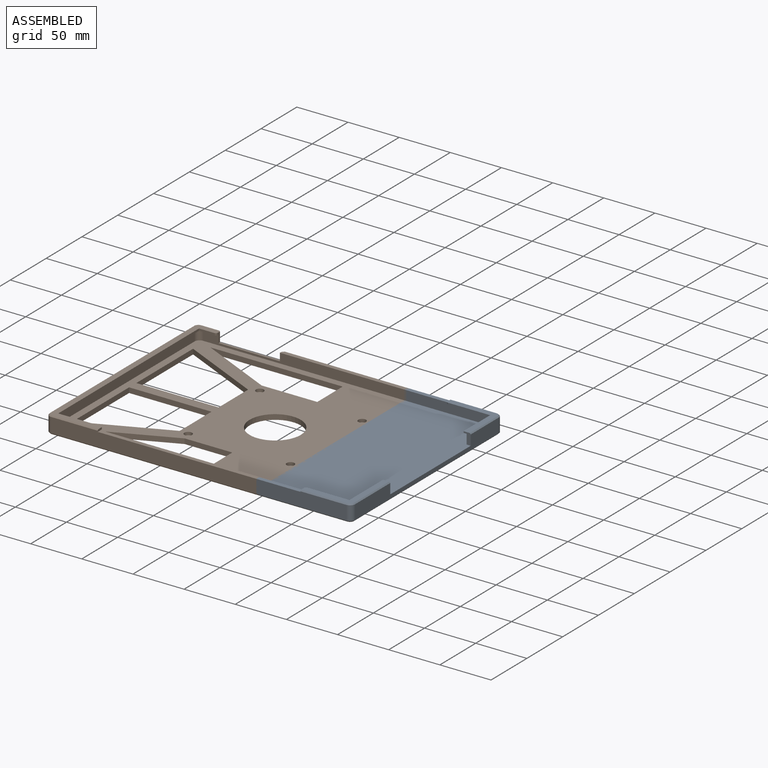
[diagram: assembled view]
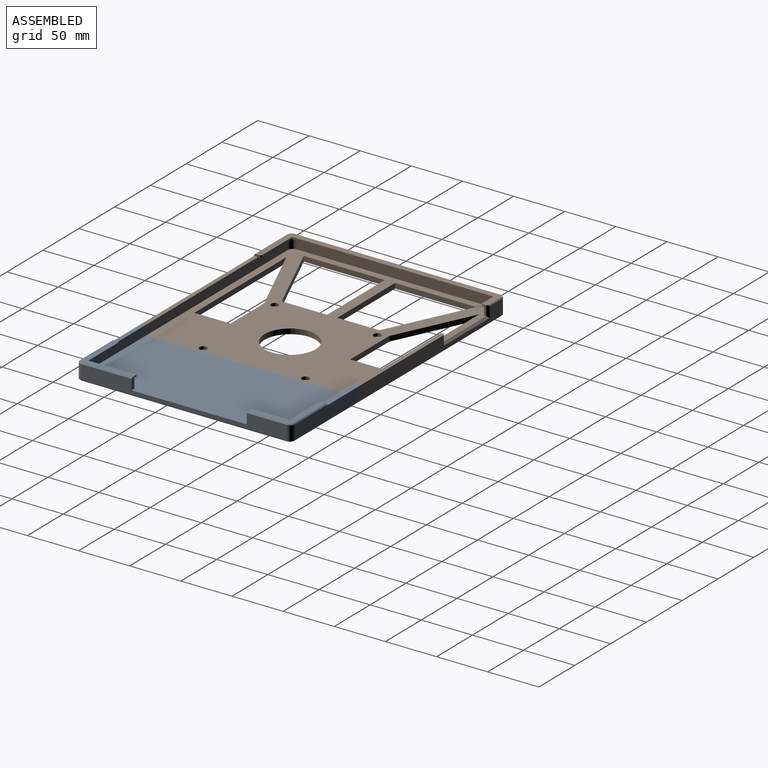
[diagram: assembled view, second angle]
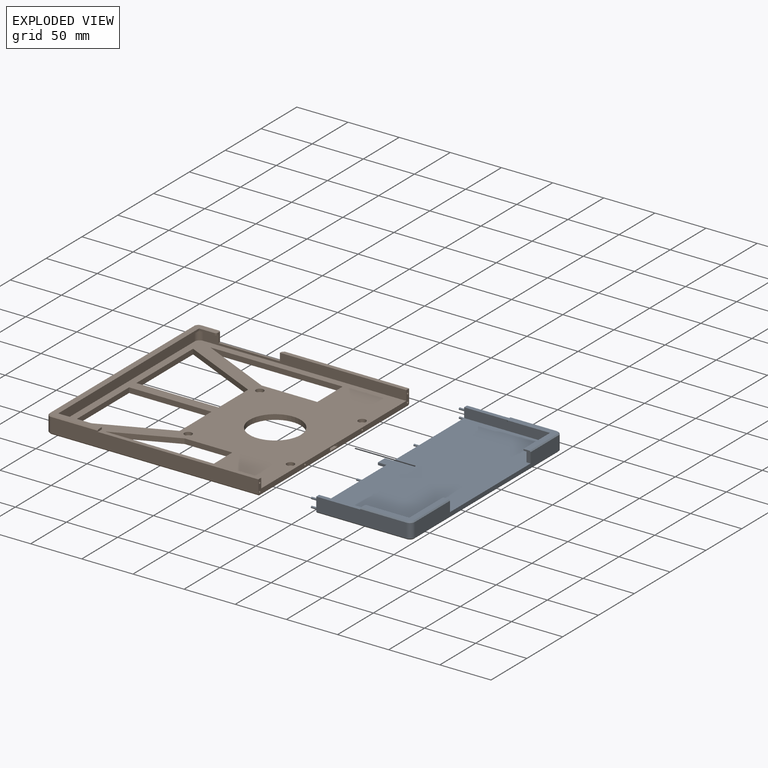
[diagram: exploded view]
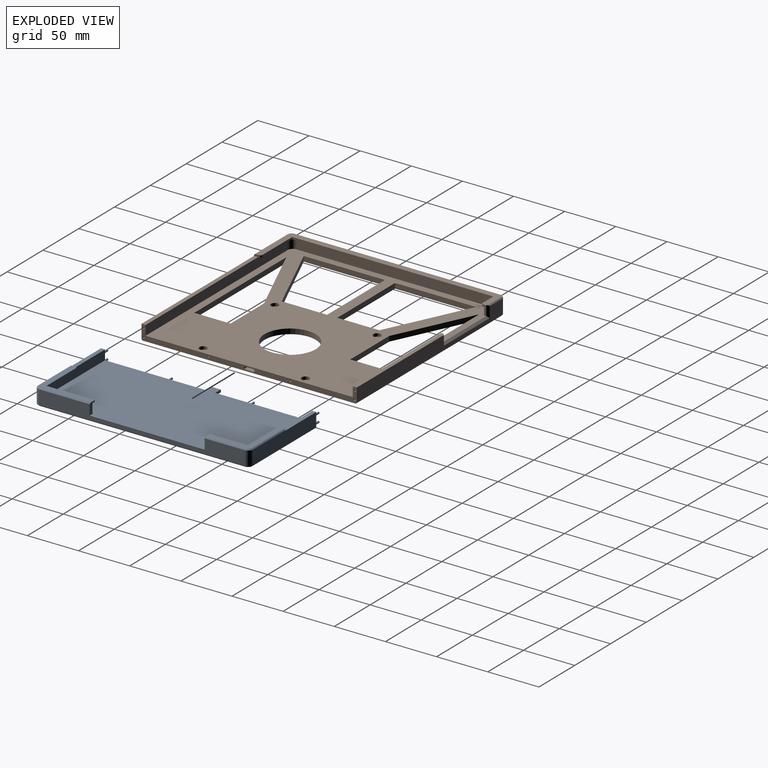
[diagram: exploded view, second angle]
ASSEMBLY  parts=2 mates=2
PART A: 58 faces, bbox 103x210.5x16 mm
  f0: plane 45x9.5mm, normal (-1,0,0), area 427.5mm2, adj f2,f7,f14,f57
  f1: plane 200.5x14mm, normal (1,0,0), area 1682mm2, adj f5,f7,f16,f17,f41,f46,f56,f57
  f2: plane 50x46mm, normal (0,0,-1), area 272.8mm2, adj f0,f3,f9,f14,f19,f23,f50,f57
  f3: plane 47x1.5mm, normal (-1,0,0), area 70.5mm2, adj f2,f4,f23,f57
  f4: plane 53x49mm, normal (0,0,1), area 571.7mm2, adj f3,f5,f19,f23,f47,f48,f50,f57
  f5: plane 49x1mm, normal (0.71,0,0.71), area 69.3mm2, adj f1,f4,f47,f57
  f6: plane 43x4mm, normal (0,0,1), area 172mm2, adj f8,f12,f20,f25
  f7: plane 202.5x93mm, normal (0,0,1), area 18461.8mm2, adj f0,f1,f8,f9,f10,f14,f15,f25
  f8: plane 84x9.5mm, normal (0,-1,0), area 798mm2, adj f6,f7,f15,f18,f25
  f9: plane 84x9.5mm, normal (0,1,0), area 798mm2, adj f2,f7,f13,f14,f25
  f10: plane 35x9.5mm, normal (-1,0,0), area 332.5mm2, adj f7,f15,f18,f56
  f11: plane 88x14mm, normal (0,-1,0), area 1210.5mm2, adj f13,f17,f19,f25,f43,f48
  f12: plane 88x14mm, normal (0,1,0), area 1210.5mm2, adj f6,f16,f20,f25,f39,f44
  f13: plane 43x4mm, normal (0,0,1), area 172mm2, adj f9,f11,f19,f25
  f14: cylinder r=5mm len=9.5mm, axis (0,0,-1), area 74.6mm2, adj f0,f2,f7,f9
  f15: cylinder r=5mm len=9.5mm, axis (0,0,1), area 74.6mm2, adj f7,f8,f10,f18
  f16: cylinder r=5mm len=14mm, axis (0,0,1), area 110mm2, adj f1,f12,f40,f45
  f17: cylinder r=5mm len=14mm, axis (0,0,-1), area 110mm2, adj f1,f11,f42,f47
  f18: plane 46x40mm, normal (0,0,-1), area 242.8mm2, adj f8,f10,f15,f20,f21,f22,f49,f56
  f19: plane 5x1.5mm, normal (-1,0,0), area 7mm2, adj f2,f4,f11,f13,f48,f50
  f20: plane 5x1.5mm, normal (-1,0,0), area 7mm2, adj f6,f12,f18,f24,f44,f49
  f21: plane 41x1.5mm, normal (0,-1,0), area 61.5mm2, adj f18,f22,f24,f49
  f22: plane 37x1.5mm, normal (-1,0,0), area 55.5mm2, adj f18,f21,f24,f56
  f23: plane 41x1.5mm, normal (0,1,0), area 61.5mm2, adj f2,f3,f4,f50
  f24: plane 49x43mm, normal (0,0,1), area 511.7mm2, adj f20,f21,f22,f44,f45,f46,f49,f56
  f25: plane 210.5x14.5mm, normal (-1,0,0), area 1085.8mm2, adj f6,f7,f8,f9,f11,f12,f13,f26
  f26: cylinder r=0.97mm len=6mm, axis (1,0,0), area 36.8mm2, adj f25,f27
  f27: plane 1.95x1.95mm, normal (-1,0,0), area 3mm2, adj f26
  f28: cylinder r=0.97mm len=6mm, axis (1,0,0), area 36.8mm2, adj f25,f29
  f29: plane 1.95x1.95mm, normal (-1,0,0), area 3mm2, adj f28
  f30: cylinder r=0.97mm len=6mm, axis (1,0,0), area 36.8mm2, adj f25,f31
  f31: plane 1.95x1.95mm, normal (-1,0,0), area 3mm2, adj f30
  f32: cylinder r=0.97mm len=6mm, axis (1,0,0), area 36.8mm2, adj f25,f33
  f33: plane 1.95x1.95mm, normal (-1,0,0), area 3mm2, adj f32
  f34: cylinder r=0.97mm len=6mm, axis (1,0,0), area 36.8mm2, adj f25,f35
  f35: plane 1.95x1.95mm, normal (-1,0,0), area 3mm2, adj f34
  f36: cylinder r=0.97mm len=6mm, axis (1,0,0), area 36.8mm2, adj f25,f37
  f37: plane 1.95x1.95mm, normal (-1,0,0), area 3mm2, adj f36
  f38: plane 208.5x92mm, normal (0,0,-1), area 19175.1mm2, adj f25,f39,f40,f41,f42,f43
  f39: plane 88x1mm, normal (0,0.71,-0.71), area 124.5mm2, adj f12,f25,f38,f40
  f40: cone r=4mm half-angle=45deg, axis (0,0,1), area 10mm2, adj f16,f38,f39,f41
  f41: plane 200.5x1mm, normal (0.71,0,-0.71), area 283.5mm2, adj f1,f38,f40,f42
  f42: cone r=4mm half-angle=45deg, axis (0,0,1), area 10mm2, adj f17,f38,f41,f43
  f43: plane 88x1mm, normal (0,-0.71,-0.71), area 124.5mm2, adj f11,f25,f38,f42
  f44: plane 45x1mm, normal (0,0.71,0.71), area 63.6mm2, adj f12,f20,f24,f45
  f45: cone r=4mm half-angle=45deg, axis (0,0,-1), area 10mm2, adj f16,f24,f44,f46
  f46: plane 39x1mm, normal (0.71,0,0.71), area 55.2mm2, adj f1,f24,f45,f56
  f47: cone r=4mm half-angle=45deg, axis (0,0,-1), area 10mm2, adj f4,f5,f17,f48
  f48: plane 45x1mm, normal (0,-0.71,0.71), area 63.6mm2, adj f4,f11,f19,f47
  f49: cylinder r=2mm len=2mm, axis (0,0,1), area 4.7mm2, adj f18,f20,f21,f24
  f50: cylinder r=2mm len=2mm, axis (0,0,-1), area 4.7mm2, adj f2,f4,f19,f23
  f51: plane 10x9.9mm, normal (0,0,1), area 99mm2, adj f25,f52,f54,f55
  f52: plane 10x2.4mm, normal (0,1,0), area 24mm2, adj f25,f51,f53,f55
  f53: plane 10x9.9mm, normal (0,0,-1), area 99mm2, adj f25,f52,f54,f55
  f54: plane 10x2.4mm, normal (0,-1,0), area 24mm2, adj f25,f51,f53,f55
  f55: plane 9.9x2.4mm, normal (-1,0,0), area 23.8mm2, adj f51,f52,f53,f54
  f56: plane 11x7mm, normal (0,-1,0), area 48mm2, adj f1,f7,f10,f18,f22,f24,f46
  f57: plane 11x7mm, normal (0,1,0), area 48mm2, adj f0,f1,f2,f3,f4,f5,f7
PART B: 85 faces, bbox 207.5x210.5x16.5 mm
  f0: plane 203.5x202.5mm, normal (0,0,1), area 22871.8mm2, adj f3,f9,f10,f13,f15,f16,f37,f39
  f1: plane 208.5x206.5mm, normal (0,0,-1), area 24820.4mm2, adj f3,f4,f5,f6,f7,f45,f46,f47
  f2: plane 123.5x4mm, normal (0,0,1), area 492mm2, adj f3,f9,f12,f62,f67
  f3: plane 210.5x14.5mm, normal (1,0,0), area 1083.7mm2, adj f0,f1,f2,f8,f9,f10,f11,f12
  f4: cylinder r=2.5mm len=5mm, axis (0,0,-1), area 31.4mm2, adj f1,f44
  f5: cylinder r=2.5mm len=5mm, axis (0,0,-1), area 31.4mm2, adj f1,f42
  f6: cylinder r=2.5mm len=5mm, axis (0,0,-1), area 31.4mm2, adj f1,f40
  f7: cylinder r=2.5mm len=5mm, axis (0,0,-1), area 31.4mm2, adj f1,f38
  f8: plane 157.04x4mm, normal (0,0,1), area 628.2mm2, adj f3,f10,f11,f21
  f9: plane 198.5x9.5mm, normal (0,-1,0), area 1435.8mm2, adj f0,f2,f3,f15,f19,f61,f62,f63
  f10: plane 198.5x9.5mm, normal (0,1,0), area 1885.7mm2, adj f0,f3,f8,f16,f19
  f11: plane 202.5x14.5mm, normal (0,-1,0), area 2779.2mm2, adj f3,f8,f17,f21,f45,f50
  f12: plane 202.5x14.5mm, normal (0,1,0), area 2142.8mm2, adj f2,f3,f18,f49,f54,f65,f66,f67
  f13: plane 192.5x9.5mm, normal (1,0,0), area 1828.8mm2, adj f0,f15,f16,f19
  f14: plane 200.5x14.5mm, normal (-1,0,0), area 2907.3mm2, adj f17,f18,f47,f52
  f15: cylinder r=5mm len=9.5mm, axis (0,0,-1), area 74.6mm2, adj f0,f9,f13,f19
  f16: cylinder r=5mm len=9.5mm, axis (0,0,1), area 74.6mm2, adj f0,f10,f13,f19
  f17: cylinder r=5mm len=14.5mm, axis (0,0,1), area 113.9mm2, adj f11,f14,f46,f51
  f18: cylinder r=5mm len=14.5mm, axis (0,0,-1), area 113.9mm2, adj f12,f14,f48,f53
  f19: plane 202.5x46.46mm, normal (0,0,-1), area 776.4mm2, adj f9,f10,f13,f15,f16,f20,f21,f22
  f20: plane 15x2mm, normal (0,-1,0), area 30mm2, adj f19,f23,f24,f64
  f21: plane 5x2mm, normal (1,0,0), area 9.5mm2, adj f8,f11,f19,f24,f50,f55
  f22: plane 41.46x2mm, normal (0,1,0), area 82.9mm2, adj f19,f23,f24,f55
  f23: plane 196.5x2mm, normal (1,0,0), area 393mm2, adj f19,f20,f22,f24
  f24: plane 208.5x49.46mm, normal (0,0,1), area 1604.7mm2, adj f20,f21,f22,f23,f50,f51,f52,f53
  f25: cylinder r=1mm len=7mm, axis (1,0,0), area 44mm2, adj f3,f26
  f26: plane 2x2mm, normal (1,0,0), area 3.1mm2, adj f25
  f27: cylinder r=1mm len=7mm, axis (1,0,0), area 44mm2, adj f3,f28
  f28: plane 2x2mm, normal (1,0,0), area 3.1mm2, adj f27
  f29: cylinder r=1mm len=7mm, axis (1,0,0), area 44mm2, adj f3,f30
  f30: plane 2x2mm, normal (1,0,0), area 3.1mm2, adj f29
  f31: cylinder r=1mm len=7mm, axis (1,0,0), area 44mm2, adj f3,f32
  f32: plane 2x2mm, normal (1,0,0), area 3.1mm2, adj f31
  f33: cylinder r=1mm len=7mm, axis (1,0,0), area 44mm2, adj f3,f34
  f34: plane 2x2mm, normal (1,0,0), area 3.1mm2, adj f33
  f35: cylinder r=1mm len=7mm, axis (1,0,0), area 44mm2, adj f3,f36
  f36: plane 2x2mm, normal (1,0,0), area 3.1mm2, adj f35
  f37: cylinder r=3.75mm len=7.5mm, axis (0,0,1), area 70.7mm2, adj f0,f38
  f38: plane 7.5x7.5mm, normal (0,0,1), area 24.5mm2, adj f7,f37
  f39: cylinder r=3.75mm len=7.5mm, axis (0,0,1), area 70.7mm2, adj f0,f40
  f40: plane 7.5x7.5mm, normal (0,0,1), area 24.5mm2, adj f6,f39
  f41: cylinder r=3.75mm len=7.5mm, axis (0,0,1), area 70.7mm2, adj f0,f42
  f42: plane 7.5x7.5mm, normal (0,0,1), area 24.5mm2, adj f5,f41
  f43: cylinder r=3.75mm len=7.5mm, axis (0,0,1), area 70.7mm2, adj f0,f44
  f44: plane 7.5x7.5mm, normal (0,0,1), area 24.5mm2, adj f4,f43
  f45: plane 202.5x1mm, normal (0,-0.71,-0.71), area 286.4mm2, adj f1,f3,f11,f46
  f46: cone r=4mm half-angle=45deg, axis (0,0,1), area 10mm2, adj f1,f17,f45,f47
  f47: plane 200.5x1mm, normal (-0.71,0,-0.71), area 283.5mm2, adj f1,f14,f46,f48
  f48: cone r=4mm half-angle=45deg, axis (0,0,1), area 10mm2, adj f1,f18,f47,f49
  f49: plane 202.5x1mm, normal (0,0.71,-0.71), area 286.4mm2, adj f1,f3,f12,f48
  f50: plane 45.46x1mm, normal (0,-0.71,0.71), area 64.3mm2, adj f11,f21,f24,f51
  f51: cone r=4mm half-angle=45deg, axis (0,0,-1), area 10mm2, adj f17,f24,f50,f52
  f52: plane 200.5x1mm, normal (-0.71,0,0.71), area 283.5mm2, adj f14,f24,f51,f53
  f53: cone r=4mm half-angle=45deg, axis (0,0,-1), area 10mm2, adj f18,f24,f52,f54
  f54: plane 18x1mm, normal (0,0.71,0.71), area 24.7mm2, adj f12,f24,f53,f65
  f55: cylinder r=2mm len=2mm, axis (0,0,-1), area 6.3mm2, adj f19,f21,f22,f24
  f56: plane 11x10mm, normal (0,0,-1), area 110mm2, adj f3,f57,f59,f60
  f57: plane 11x2.5mm, normal (0,1,0), area 27.5mm2, adj f3,f56,f58,f60
  f58: plane 11x10mm, normal (0,0,1), area 110mm2, adj f3,f57,f59,f60
  f59: plane 11x2.5mm, normal (0,-1,0), area 27.5mm2, adj f3,f56,f58,f60
  f60: plane 10x2.5mm, normal (1,0,0), area 25mm2, adj f56,f57,f58,f59
  f61: plane 60x2mm, normal (0,0,1), area 120mm2, adj f9,f62,f63,f66
  f62: plane 7.5x2mm, normal (-1,0,0), area 15mm2, adj f2,f9,f61,f67
  f63: plane 9.5x3mm, normal (1,0,0), area 21mm2, adj f9,f19,f24,f61,f64,f65
  f64: cylinder r=2mm len=2mm, axis (0,0,1), area 6.3mm2, adj f19,f20,f24,f63
  f65: plane 11.5x2mm, normal (0.71,0.71,0), area 29mm2, adj f12,f24,f54,f63,f66
  f66: plane 64x2mm, normal (0,0.71,0.71), area 175.4mm2, adj f12,f61,f65,f67
  f67: plane 9.5x2mm, normal (-0.71,0.71,0), area 24mm2, adj f2,f12,f62,f66
  f68: plane 80.5x38.16mm, normal (-0.43,-0.9,0), area 445.4mm2, adj f0,f1,f69,f71
  f69: plane 79.25x5mm, normal (1,0,0), area 396.3mm2, adj f0,f1,f68,f70
  f70: plane 80.5x5mm, normal (0,1,0), area 402.5mm2, adj f0,f1,f69,f71
  f71: plane 41.09x5mm, normal (-1,0,0), area 205.4mm2, adj f0,f1,f68,f70
  f72: cylinder r=25mm len=50mm, axis (0,0,1), area 785.4mm2, adj f0,f1
  f73: plane 81.87x35.5mm, normal (0.4,-0.92,0), area 446.2mm2, adj f0,f1,f74,f76
  f74: plane 128.5x5mm, normal (0,1,0), area 642.5mm2, adj f0,f1,f73,f75
  f75: plane 35.5x5mm, normal (-1,0,0), area 177.5mm2, adj f0,f1,f74,f76
  f76: plane 46.63x5mm, normal (0,-1,0), area 233.2mm2, adj f0,f1,f73,f75
  f77: plane 74.88x35.5mm, normal (0.43,0.9,0), area 414.3mm2, adj f0,f1,f78,f80
  f78: plane 54.37x5mm, normal (0,1,0), area 271.8mm2, adj f0,f1,f77,f79
  f79: plane 35.5x5mm, normal (-1,0,0), area 177.5mm2, adj f0,f1,f78,f80
  f80: plane 129.25x5mm, normal (0,-1,0), area 646.3mm2, adj f0,f1,f77,f79
  f81: plane 80.5x5mm, normal (0,-1,0), area 402.5mm2, adj f0,f1,f82,f84
  f82: plane 79.25x5mm, normal (1,0,0), area 396.3mm2, adj f0,f1,f81,f83
  f83: plane 80.5x34.91mm, normal (-0.4,0.92,0), area 438.7mm2, adj f0,f1,f82,f84
  f84: plane 44.34x5mm, normal (-1,0,0), area 221.7mm2, adj f0,f1,f81,f83
PLACE A t=(94.85,-75.45,-100.44)mm
PLACE B t=(96.79,-75.45,-100.44)mm
MATE planar A.f11 <-> B.f11  axis (0,-1,0) through (173.6,-180.7,-86.94)mm
MATE planar B.f1 <-> A.f38  axis (0,0,-1) through (70.12,-75.57,-101.44)mm
